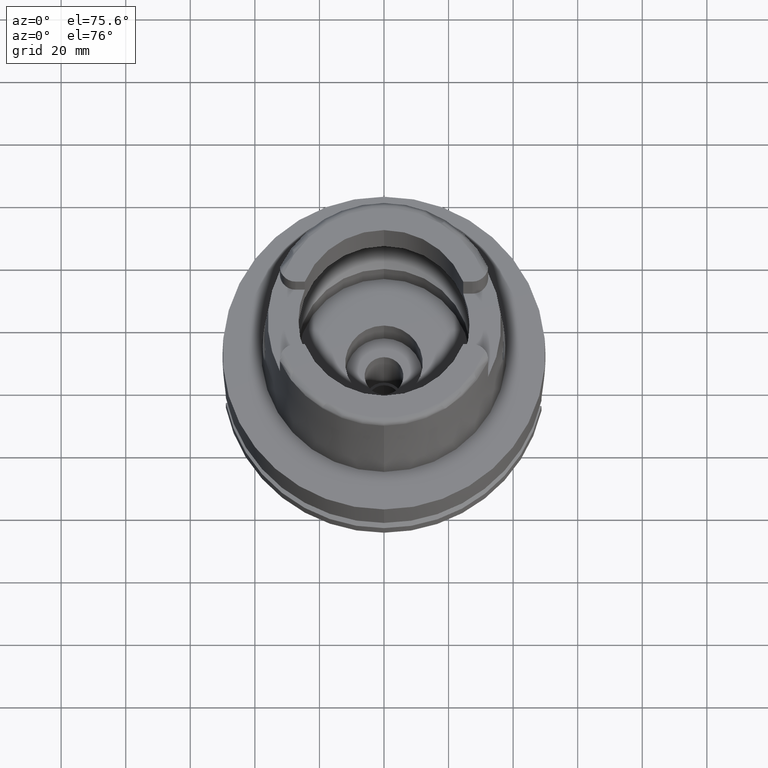
[diagram: clean part render]
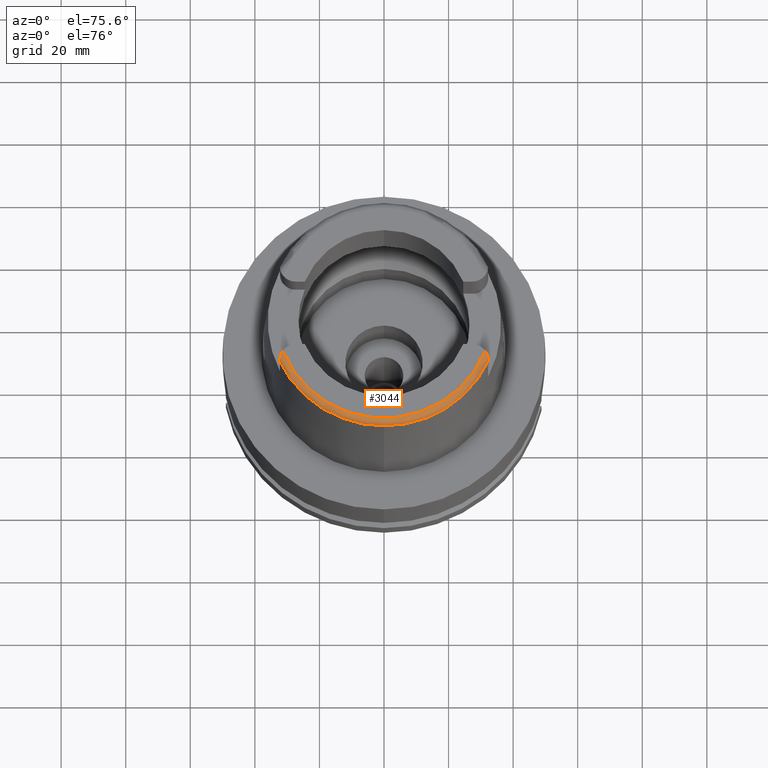
[diagram: same view with one face highlighted and labeled with its STEP entity id]
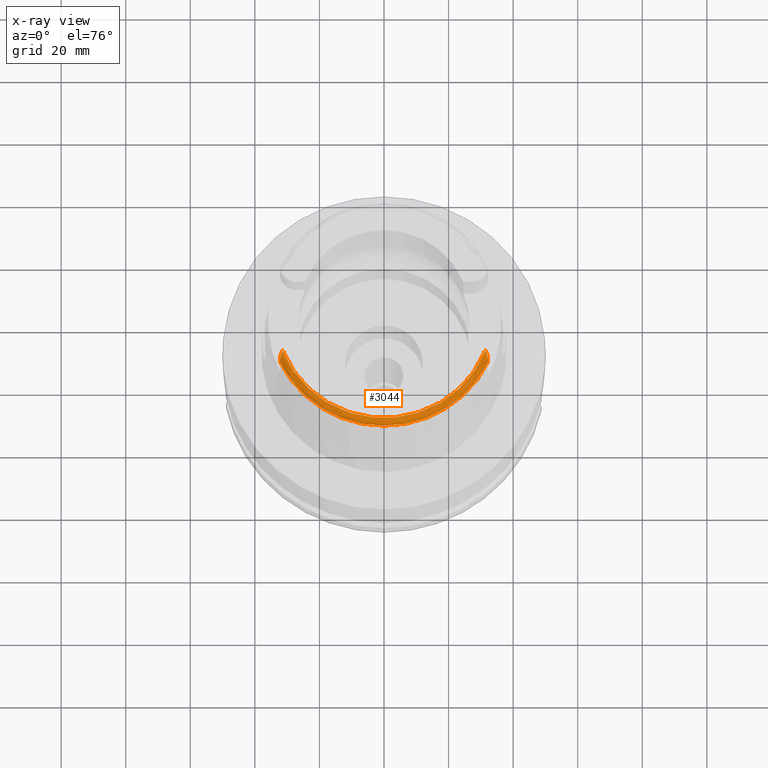
[diagram: x-ray of the same camera — body ghosted, the highlighted face saturated]
A machine part, auxiliary view. The second image highlights one B-rep face of the part: STEP entity #3044.
The next image is the same camera in x-ray: the body ghosted, the highlighted face saturated — about 0% of this face is hidden behind the body in this view.
In plain terms, the highlighted toroidal blend (fillet) surface has major radius 33.5974 mm and minor (blend) radius 2 mm.
Its self-contained STEP definition (entity closure, byte-faithful):
#22=CARTESIAN_POINT('',(-3.224999491821E1,-1.506448482235E1,4.809973250236E1));
#404=CARTESIAN_POINT('',(-3.224999491821E1,-1.506448482235E1,4.809973250236E1));
#405=CARTESIAN_POINT('',(-3.224999491821E1,-1.505850683662E1,4.815033072491E1));
#406=CARTESIAN_POINT('',(-3.225000237150E1,-1.503768878324E1,4.825045974849E1));
#407=CARTESIAN_POINT('',(-3.224999932243E1,-1.497897228574E1,4.840071571700E1));
#408=CARTESIAN_POINT('',(-3.225E1,-1.492257080605E1,4.849788709598E1));
#409=CARTESIAN_POINT('',(-3.225E1,-1.489E1,4.854599893822E1));
#414=CARTESIAN_POINT('',(-3.225E1,-1.489E1,4.854599893822E1));
#415=CARTESIAN_POINT('',(-3.225E1,-1.484285500439E1,4.861563898912E1));
#416=CARTESIAN_POINT('',(-3.224870525878E1,-1.473145695393E1,4.875546002241E1));
#417=CARTESIAN_POINT('',(-3.223729566460E1,-1.451110883967E1,4.896915252550E1));
#418=CARTESIAN_POINT('',(-3.221013097064E1,-1.424506620332E1,4.917988162504E1));
#419=CARTESIAN_POINT('',(-3.215895863099E1,-1.393135891169E1,4.938802650331E1));
#420=CARTESIAN_POINT('',(-3.207468659748E1,-1.357372645939E1,4.958675707355E1));
#421=CARTESIAN_POINT('',(-3.194548782735E1,-1.317484106595E1,4.976641404077E1));
#422=CARTESIAN_POINT('',(-3.177343632421E1,-1.277097655329E1,4.990333497612E1));
#423=CARTESIAN_POINT('',(-3.156513545562E1,-1.238544653751E1,4.998507371021E1));
#424=CARTESIAN_POINT('',(-3.142434636246E1,-1.217125508449E1,5.E1));
#425=CARTESIAN_POINT('',(-3.135385269249E1,-1.207161079257E1,5.E1));
#430=CARTESIAN_POINT('',(3.135385269249E1,-1.207161079257E1,5.E1));
#431=CARTESIAN_POINT('',(3.142441409526E1,-1.217135082623E1,5.E1));
#432=CARTESIAN_POINT('',(3.156532342803E1,-1.238576634150E1,4.998502448685E1));
#433=CARTESIAN_POINT('',(3.177359838542E1,-1.277126380781E1,4.990328065348E1));
#434=CARTESIAN_POINT('',(3.194594797643E1,-1.317606669882E1,4.976593185710E1));
#435=CARTESIAN_POINT('',(3.207470466457E1,-1.357391789862E1,4.958661959961E1));
#436=CARTESIAN_POINT('',(3.215891351219E1,-1.393109764277E1,4.938819224926E1));
#437=CARTESIAN_POINT('',(3.221021453501E1,-1.424552941928E1,4.917959262913E1));
#438=CARTESIAN_POINT('',(3.223742681638E1,-1.451263176637E1,4.896789126351E1));
#439=CARTESIAN_POINT('',(3.224874739889E1,-1.473310159813E1,4.875363940417E1));
#440=CARTESIAN_POINT('',(3.225E1,-1.484343577664E1,4.861478110359E1));
#441=CARTESIAN_POINT('',(3.225E1,-1.489E1,4.854599893822E1));
#446=CARTESIAN_POINT('',(3.225E1,-1.489E1,4.854599893822E1));
#447=CARTESIAN_POINT('',(3.225E1,-1.492398411609E1,4.849579943043E1));
#448=CARTESIAN_POINT('',(3.225000073602E1,-1.498168751958E1,4.839545484611E1));
#449=CARTESIAN_POINT('',(3.224999742392E1,-1.503943592599E1,4.824425008765E1));
#450=CARTESIAN_POINT('',(3.225000552017E1,-1.505880074740E1,4.814741980827E1));
#451=CARTESIAN_POINT('',(3.225000552017E1,-1.506439827564E1,4.810004181303E1));
#456=CARTESIAN_POINT('',(0.E0,0.E0,4.809987853799E1));
#457=DIRECTION('',(0.E0,0.E0,-1.E0));
#458=DIRECTION('',(9.060280460805E-1,-4.232176505246E-1,0.E0));
#459=AXIS2_PLACEMENT_3D('',#456,#457,#458);
#464=CARTESIAN_POINT('',(0.E0,0.E0,4.809987853799E1));
#465=DIRECTION('',(0.E0,0.E0,-1.E0));
#466=DIRECTION('',(0.E0,-1.E0,0.E0));
#467=AXIS2_PLACEMENT_3D('',#464,#465,#466);
#518=CARTESIAN_POINT('',(0.E0,0.E0,5.E1));
#519=DIRECTION('',(0.E0,0.E0,-1.E0));
#520=DIRECTION('',(9.332215253018E-1,-3.593015233942E-1,0.E0));
#521=AXIS2_PLACEMENT_3D('',#518,#519,#520);
#2454=VERTEX_POINT('',#22);
#2455=CARTESIAN_POINT('',(0.E0,-3.559494289391E1,4.809987853799E1));
#2456=VERTEX_POINT('',#2455);
#2485=VERTEX_POINT('',#409);
#2486=VERTEX_POINT('',#425);
#2487=CARTESIAN_POINT('',(3.135385269249E1,-1.207161079257E1,5.E1));
#2488=VERTEX_POINT('',#2487);
#2489=VERTEX_POINT('',#441);
#2490=VERTEX_POINT('',#451);
#3026=CARTESIAN_POINT('',(0.E0,0.E0,4.8E1));
#3027=DIRECTION('',(0.E0,0.E0,1.E0));
#3028=DIRECTION('',(-4.184165975220E-4,-9.999999124638E-1,0.E0));
#3029=AXIS2_PLACEMENT_3D('',#3026,#3027,#3028);
#3030=TOROIDAL_SURFACE('',#3029,3.359743838136E1,2.E0);
#3032=ORIENTED_EDGE('',*,*,#3031,.T.);
#3034=ORIENTED_EDGE('',*,*,#3033,.T.);
#3036=ORIENTED_EDGE('',*,*,#3035,.F.);
#3038=ORIENTED_EDGE('',*,*,#3037,.T.);
#3039=ORIENTED_EDGE('',*,*,#3018,.T.);
#3040=ORIENTED_EDGE('',*,*,#2978,.T.);
#3041=ORIENTED_EDGE('',*,*,#2822,.T.);
#3042=EDGE_LOOP('',(#3032,#3034,#3036,#3038,#3039,#3040,#3041));
#3043=FACE_OUTER_BOUND('',#3042,.F.);
#410=B_SPLINE_CURVE_WITH_KNOTS('',3,(#404,#405,#406,#407,#408,#409),
.UNSPECIFIED.,.F.,.F.,(4,1,1,4),(0.E0,3.333333333333E-1,6.666666666667E-1,1.E0),
.UNSPECIFIED.);
#426=B_SPLINE_CURVE_WITH_KNOTS('',3,(#414,#415,#416,#417,#418,#419,#420,#421,
#422,#423,#424,#425),.UNSPECIFIED.,.F.,.F.,(4,1,1,1,1,1,1,1,1,4),(0.E0,
1.111111111111E-1,2.222222222222E-1,3.333333333333E-1,4.444444444444E-1,
5.555555555556E-1,6.666666666667E-1,7.777777777778E-1,8.888888888889E-1,1.E0),
.UNSPECIFIED.);
#442=B_SPLINE_CURVE_WITH_KNOTS('',3,(#430,#431,#432,#433,#434,#435,#436,#437,
#438,#439,#440,#441),.UNSPECIFIED.,.F.,.F.,(4,1,1,1,1,1,1,1,1,4),(0.E0,
1.111111111111E-1,2.222222222222E-1,3.333333333333E-1,4.444444444444E-1,
5.555555555556E-1,6.666666666667E-1,7.777777777778E-1,8.888888888889E-1,1.E0),
.UNSPECIFIED.);
#452=B_SPLINE_CURVE_WITH_KNOTS('',3,(#446,#447,#448,#449,#450,#451),
.UNSPECIFIED.,.F.,.F.,(4,1,1,4),(0.E0,3.333333333333E-1,6.666666666667E-1,1.E0),
.UNSPECIFIED.);
#460=CIRCLE('',#459,3.559494289391E1);
#468=CIRCLE('',#467,3.559494289391E1);
#522=CIRCLE('',#521,3.359743838136E1);
#2822=EDGE_CURVE('',#2456,#2454,#468,.T.);
#2978=EDGE_CURVE('',#2490,#2456,#460,.T.);
#3018=EDGE_CURVE('',#2489,#2490,#452,.T.);
#3031=EDGE_CURVE('',#2454,#2485,#410,.T.);
#3033=EDGE_CURVE('',#2485,#2486,#426,.T.);
#3035=EDGE_CURVE('',#2488,#2486,#522,.T.);
#3037=EDGE_CURVE('',#2488,#2489,#442,.T.);
#3044=ADVANCED_FACE('',(#3043),#3030,.T.);